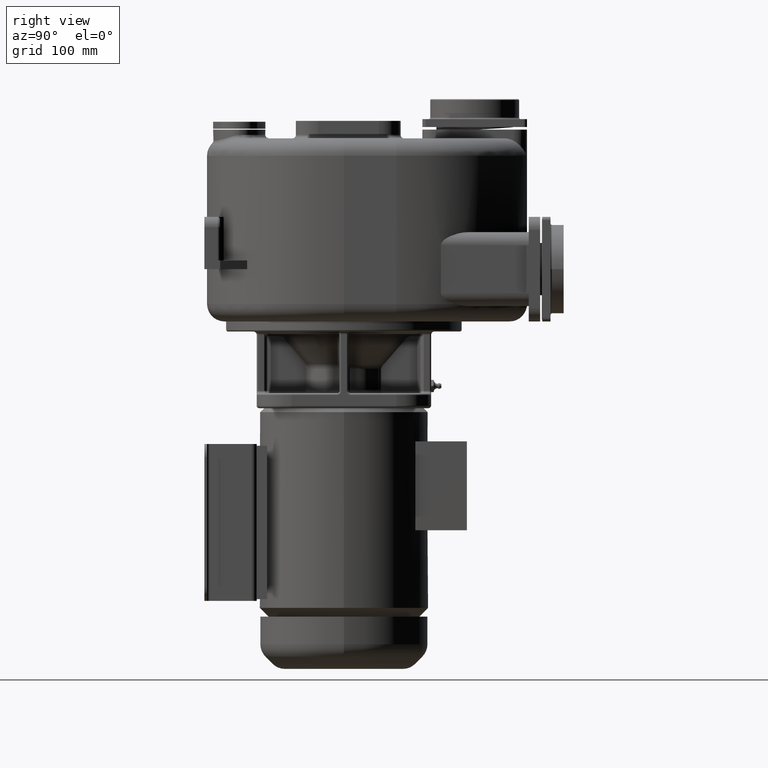
[diagram: clean part render]
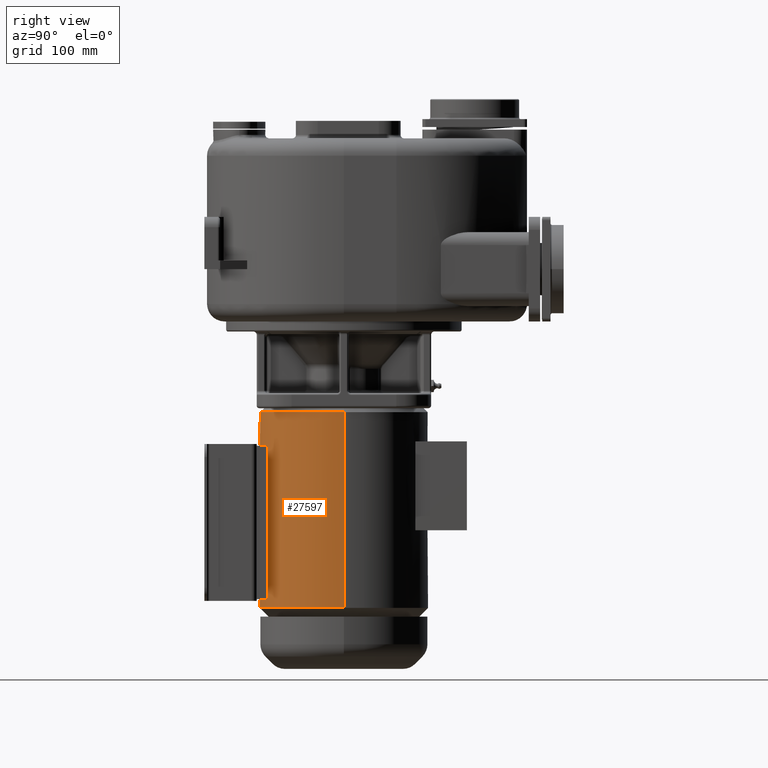
[diagram: same view with one face highlighted and labeled with its STEP entity id]
A machine part, right view. The second image highlights one B-rep face of the part: STEP entity #27597.
In plain terms, the highlighted cylindrical surface (partial cylindrical patch) has radius 96.5 mm, axis along (0, 0, 1).
Its self-contained STEP definition (entity closure, byte-faithful):
#10097=CARTESIAN_POINT('',(-9.65E1,1.181785161177E-14,-6.5E0));
#10098=CARTESIAN_POINT('',(-9.65E1,-7.542789046016E-1,-6.499999997994E0));
#10099=CARTESIAN_POINT('',(-9.648231380590E1,-2.262775134733E0,
-6.499945004398E0));
#10100=CARTESIAN_POINT('',(-9.640273042457E1,-4.524397300796E0,
-6.499967107632E0));
#10101=CARTESIAN_POINT('',(-9.627019019759E1,-6.782734426118E0,
-6.499961185088E0));
#10102=CARTESIAN_POINT('',(-9.608482805175E1,-9.036636923442E0,
-6.499962772029E0));
#10103=CARTESIAN_POINT('',(-9.584665463490E1,-1.128602025169E1,
-6.499962346810E0));
#10104=CARTESIAN_POINT('',(-9.555584662438E1,-1.352904544977E1,
-6.499962460747E0));
#10105=CARTESIAN_POINT('',(-9.521259159055E1,-1.576443529630E1,
-6.499962430218E0));
#10106=CARTESIAN_POINT('',(-9.481699914031E1,-1.799144514926E1,
-6.499962438398E0));
#10107=CARTESIAN_POINT('',(-9.436932148567E1,-2.020856446600E1,
-6.499962436206E0));
#10108=CARTESIAN_POINT('',(-9.386984978222E1,-2.241444047207E1,
-6.499962436793E0));
#10109=CARTESIAN_POINT('',(-9.331851662665E1,-2.460918404866E1,
-6.499962436636E0));
#10110=CARTESIAN_POINT('',(-9.271580901058E1,-2.679057890291E1,
-6.499962436678E0));
#10111=CARTESIAN_POINT('',(-9.206239081371E1,-2.895638479416E1,
-6.499962436667E0));
#10112=CARTESIAN_POINT('',(-9.135819476835E1,-3.110687204861E1,
-6.499962436670E0));
#10113=CARTESIAN_POINT('',(-9.060370534362E1,-3.324040991913E1,
-6.499962436669E0));
#10114=CARTESIAN_POINT('',(-8.979971483969E1,-3.535487239068E1,
-6.499962436669E0));
#10115=CARTESIAN_POINT('',(-8.894620206302E1,-3.745036973854E1,
-6.499962436669E0));
#10116=CARTESIAN_POINT('',(-8.804361125492E1,-3.952567782903E1,
-6.499962436669E0));
#10117=CARTESIAN_POINT('',(-8.709289428518E1,-4.157864334257E1,
-6.499962436669E0));
#10118=CARTESIAN_POINT('',(-8.609431564537E1,-4.360877803673E1,
-6.499962436669E0));
#10119=CARTESIAN_POINT('',(-8.504811291888E1,-4.561551844165E1,
-6.499962436669E0));
#10120=CARTESIAN_POINT('',(-8.395535039813E1,-4.759679572851E1,
-6.499962436669E0));
#10121=CARTESIAN_POINT('',(-8.281667816357E1,-4.955153046132E1,
-6.499962436669E0));
#10122=CARTESIAN_POINT('',(-8.163204803864E1,-5.147976320655E1,
-6.499962436669E0));
#10123=CARTESIAN_POINT('',(-8.040263984244E1,-5.337950379605E1,
-6.499962436669E0));
#10124=CARTESIAN_POINT('',(-7.912946532958E1,-5.524928786036E1,
-6.499962436669E0));
#10125=CARTESIAN_POINT('',(-7.781230016256E1,-5.708943254178E1,
-6.499962436669E0));
#10126=CARTESIAN_POINT('',(-7.645234128356E1,-5.889817997315E1,
-6.499962436669E0));
#10127=CARTESIAN_POINT('',(-7.505090615207E1,-6.067386095791E1,
-6.499962436669E0));
#10128=CARTESIAN_POINT('',(-7.360775990071E1,-6.241678433681E1,
-6.499962436669E0));
#10129=CARTESIAN_POINT('',(-7.212399538340E1,-6.412554592990E1,
-6.499962436669E0));
#10130=CARTESIAN_POINT('',(-7.060115595117E1,-6.579842403629E1,
-6.499962436669E0));
#10131=CARTESIAN_POINT('',(-6.903921495600E1,-6.743547908544E1,
-6.499962436669E0));
#10132=CARTESIAN_POINT('',(-6.743901305213E1,-6.903576038748E1,
-6.499962436669E0));
#10133=CARTESIAN_POINT('',(-6.580221146219E1,-7.059762581553E1,
-6.499962436669E0));
#10134=CARTESIAN_POINT('',(-6.412925741274E1,-7.212069766057E1,
-6.499962436669E0));
#10135=CARTESIAN_POINT('',(-6.242054950144E1,-7.360456539141E1,
-6.499962436669E0));
#10136=CARTESIAN_POINT('',(-6.067784281839E1,-7.504768629882E1,
-6.499962436669E0));
#10137=CARTESIAN_POINT('',(-5.890215245227E1,-7.644928241755E1,
-6.499962436669E0));
#10138=CARTESIAN_POINT('',(-5.709341056022E1,-7.780938088680E1,
-6.499962436669E0));
#10139=CARTESIAN_POINT('',(-5.525344255587E1,-7.912656319859E1,
-6.499962436669E0));
#10140=CARTESIAN_POINT('',(-5.338372671018E1,-8.039983715258E1,
-6.499962436669E0));
#10141=CARTESIAN_POINT('',(-5.148393964396E1,-8.162941455612E1,
-6.499962436669E0));
#10142=CARTESIAN_POINT('',(-4.955583914220E1,-8.281409841626E1,
-6.499962436669E0));
#10143=CARTESIAN_POINT('',(-4.760126105331E1,-8.395281927913E1,
-6.499962436669E0));
#10144=CARTESIAN_POINT('',(-4.561987317744E1,-8.504577859271E1,
-6.499962436669E0));
#10145=CARTESIAN_POINT('',(-4.361321076072E1,-8.609206811320E1,
-6.499962436669E0));
#10146=CARTESIAN_POINT('',(-4.158333969880E1,-8.709065212846E1,
-6.499962436669E0));
#10147=CARTESIAN_POINT('',(-3.953020456526E1,-8.804158094240E1,
-6.499962436669E0));
#10148=CARTESIAN_POINT('',(-3.745494665941E1,-8.894427277161E1,
-6.499962436669E0));
#10149=CARTESIAN_POINT('',(-3.535971350875E1,-8.979780879650E1,
-6.499962436669E0));
#10150=CARTESIAN_POINT('',(-3.324504865244E1,-9.060200567755E1,
-6.499962436669E0));
#10151=CARTESIAN_POINT('',(-3.111148354607E1,-9.135662338055E1,
-6.499962436669E0));
#10152=CARTESIAN_POINT('',(-2.896121515254E1,-9.206087032475E1,
-6.499962436669E0));
#10153=CARTESIAN_POINT('',(-2.679546826192E1,-9.271439601856E1,
-6.499962436669E0));
#10154=CARTESIAN_POINT('',(-2.461417356929E1,-9.331719960779E1,
-6.499962436669E0));
#10155=CARTESIAN_POINT('',(-2.241954982070E1,-9.386863002592E1,
-6.499962436669E0));
#10156=CARTESIAN_POINT('',(-2.021333415601E1,-9.436830619789E1,
-6.499962436669E0));
#10157=CARTESIAN_POINT('',(-1.799514796832E1,-9.481630667945E1,
-6.499962436669E0));
#10158=CARTESIAN_POINT('',(-1.576706648732E1,-9.521216153478E1,
-6.499962436669E0));
#10159=CARTESIAN_POINT('',(-1.353118923517E1,-9.555554843674E1,
-6.499962436669E0));
#10160=CARTESIAN_POINT('',(-1.128713337235E1,-9.584653309043E1,
-6.499962436669E0));
#10161=CARTESIAN_POINT('',(-9.036660531143E0,-9.608483288482E1,
-6.499962436669E0));
#10162=CARTESIAN_POINT('',(-6.782072349492E0,-9.627024110800E1,
-6.499962436669E0));
#10163=CARTESIAN_POINT('',(-4.523297751302E0,-9.640278432583E1,
-6.499962436669E0));
#10164=CARTESIAN_POINT('',(-2.261612921460E0,-9.648233928368E1,
-6.499962436669E0));
#10165=CARTESIAN_POINT('',(6.467984201739E-4,-9.650883795743E1,
-6.499962436669E0));
#10166=CARTESIAN_POINT('',(2.262911593502E0,-9.648230887358E1,
-6.499962436669E0));
#10167=CARTESIAN_POINT('',(4.524595404251E0,-9.640272339709E1,
-6.499962436669E0));
#10168=CARTESIAN_POINT('',(6.783364057282E0,-9.627015009578E1,
-6.499962436669E0));
#10169=CARTESIAN_POINT('',(9.037952975308E0,-9.608471135409E1,
-6.499962436669E0));
#10170=CARTESIAN_POINT('',(1.128842369233E1,-9.584638111376E1,
-6.499962436669E0));
#10171=CARTESIAN_POINT('',(1.353247251060E1,-9.555536669536E1,
-6.499962436669E0));
#10172=CARTESIAN_POINT('',(1.576834622505E1,-9.521194962480E1,
-6.499962436669E0));
#10173=CARTESIAN_POINT('',(1.799642447007E1,-9.481606440377E1,
-6.499962436669E0));
#10174=CARTESIAN_POINT('',(2.021460253806E1,-9.436803448362E1,
-6.499962436669E0));
#10175=CARTESIAN_POINT('',(2.242081044285E1,-9.386832894444E1,
-6.499962436669E0));
#10176=CARTESIAN_POINT('',(2.461542983327E1,-9.331686825223E1,
-6.499962436669E0));
#10177=CARTESIAN_POINT('',(2.679671534048E1,-9.271403555831E1,
-6.499962436669E0));
#10178=CARTESIAN_POINT('',(2.896245037644E1,-9.206048173466E1,
-6.499962436669E0));
#10179=CARTESIAN_POINT('',(3.111271328070E1,-9.135620462022E1,
-6.499962436669E0));
#10180=CARTESIAN_POINT('',(3.324626814607E1,-9.060155815015E1,
-6.499962436669E0));
#10181=CARTESIAN_POINT('',(3.536091712642E1,-8.979733483831E1,
-6.499962436669E0));
#10182=CARTESIAN_POINT('',(3.745614387890E1,-8.894376865008E1,
-6.499962436669E0));
#10183=CARTESIAN_POINT('',(3.953138965635E1,-8.804104879693E1,
-6.499962436669E0));
#10184=CARTESIAN_POINT('',(4.158450822891E1,-8.709009417307E1,
-6.499962436669E0));
#10185=CARTESIAN_POINT('',(4.361436879818E1,-8.609148148998E1,
-6.499962436669E0));
#10186=CARTESIAN_POINT('',(4.562101809272E1,-8.504516441406E1,
-6.499962436669E0));
#10187=CARTESIAN_POINT('',(4.760238851616E1,-8.395217998178E1,
-6.499962436669E0));
#10188=CARTESIAN_POINT('',(4.955695224192E1,-8.281343235454E1,
-6.499962436669E0));
#10189=CARTESIAN_POINT('',(5.148503860562E1,-8.162872142712E1,
-6.499962436669E0));
#10190=CARTESIAN_POINT('',(5.338480734667E1,-8.039911959683E1,
-6.499962436669E0));
#10191=CARTESIAN_POINT('',(5.525450523408E1,-7.912582114500E1,
-6.499962436669E0));
#10192=CARTESIAN_POINT('',(5.709445808006E1,-7.780861226783E1,
-6.499962436669E0));
#10193=CARTESIAN_POINT('',(5.890318076673E1,-7.644849007906E1,
-6.499962436669E0));
#10194=CARTESIAN_POINT('',(6.067884982006E1,-7.504687210910E1,
-6.499962436669E0));
#10195=CARTESIAN_POINT('',(6.242154029721E1,-7.360372517558E1,
-6.499962436669E0));
#10196=CARTESIAN_POINT('',(6.413022813180E1,-7.211983443799E1,
-6.499962436669E0));
#10197=CARTESIAN_POINT('',(6.580315776075E1,-7.059674378346E1,
-6.499962436669E0));
#10198=CARTESIAN_POINT('',(6.743994231027E1,-6.903485266649E1,
-6.499962436669E0));
#10199=CARTESIAN_POINT('',(6.904012265408E1,-6.743454974043E1,
-6.499962436669E0));
#10200=CARTESIAN_POINT('',(7.060203875061E1,-6.579747677999E1,
-6.499962436669E0));
#10201=CARTESIAN_POINT('',(7.212485795671E1,-6.412457580056E1,
-6.499962436669E0));
#10202=CARTESIAN_POINT('',(7.360860015071E1,-6.241579339504E1,
-6.499962436669E0));
#10203=CARTESIAN_POINT('',(7.505172090616E1,-6.067285310682E1,
-6.499962436669E0));
#10204=CARTESIAN_POINT('',(7.645313288092E1,-5.889715246811E1,
-6.499962436669E0));
#10205=CARTESIAN_POINT('',(7.781306865241E1,-5.708838508184E1,
-6.499962436669E0));
#10206=CARTESIAN_POINT('',(7.913020776185E1,-5.524822447569E1,
-6.499962436669E0));
#10207=CARTESIAN_POINT('',(8.040335667088E1,-5.337842408947E1,
-6.499962436669E0));
#10208=CARTESIAN_POINT('',(8.163274121038E1,-5.147866405415E1,
-6.499962436669E0));
#10209=CARTESIAN_POINT('',(8.281734479482E1,-4.955041622460E1,
-6.499962436669E0));
#10210=CARTESIAN_POINT('',(8.395598894415E1,-4.759566938775E1,
-6.499962436669E0));
#10211=CARTESIAN_POINT('',(8.504872655469E1,-4.561437438634E1,
-6.499962436669E0));
#10212=CARTESIAN_POINT('',(8.609490206604E1,-4.360762019246E1,
-6.499962436669E0));
#10213=CARTESIAN_POINT('',(8.709345149841E1,-4.157747619123E1,
-6.499962436669E0));
#10214=CARTESIAN_POINT('',(8.804414439379E1,-3.952449039079E1,
-6.499962436669E0));
#10215=CARTESIAN_POINT('',(8.894670793858E1,-3.744916818149E1,
-6.499962436669E0));
#10216=CARTESIAN_POINT('',(8.980019031314E1,-3.535366453689E1,
-6.499962436669E0));
#10217=CARTESIAN_POINT('',(9.060414990669E1,-3.323919797628E1,
-6.499962436669E0));
#10218=CARTESIAN_POINT('',(9.135860838119E1,-3.110565709966E1,
-6.499962436669E0));
#10219=CARTESIAN_POINT('',(9.206277622025E1,-2.895515985082E1,
-6.499962436666E0));
#10220=CARTESIAN_POINT('',(9.271617502581E1,-2.678931340847E1,
-6.499962436678E0));
#10221=CARTESIAN_POINT('',(9.331886273386E1,-2.460787237027E1,
-6.499962436636E0));
#10222=CARTESIAN_POINT('',(9.387016355648E1,-2.241312491168E1,
-6.499962436793E0));
#10223=CARTESIAN_POINT('',(9.436958410806E1,-2.020733266494E1,
-6.499962436206E0));
#10224=CARTESIAN_POINT('',(9.481719728523E1,-1.799039158772E1,
-6.499962438397E0));
#10225=CARTESIAN_POINT('',(9.521272536832E1,-1.576361509328E1,
-6.499962430217E0));
#10226=CARTESIAN_POINT('',(9.555592513035E1,-1.352847690212E1,
-6.499962460746E0));
#10227=CARTESIAN_POINT('',(9.584669202958E1,-1.128568761383E1,
-6.499962346810E0));
#10228=CARTESIAN_POINT('',(9.608483853458E1,-9.036509949932E0,
-6.499962772025E0));
#10229=CARTESIAN_POINT('',(9.627018712687E1,-6.782764151262E0,
-6.499961185104E0));
#10230=CARTESIAN_POINT('',(9.640272453917E1,-4.524514458801E0,
-6.499967107570E0));
#10231=CARTESIAN_POINT('',(9.648231134232E1,-2.262896317865E0,
-6.499945004627E0));
#10232=CARTESIAN_POINT('',(9.65E1,-7.543304264046E-1,-6.499999997498E0));
#10233=CARTESIAN_POINT('',(9.65E1,-2.363567322354E-14,-6.5E0));
#10235=CARTESIAN_POINT('',(0.E0,0.E0,-2.31E2));
#10236=DIRECTION('',(0.E0,0.E0,1.E0));
#10237=DIRECTION('',(0.E0,-1.E0,0.E0));
#10238=AXIS2_PLACEMENT_3D('',#10235,#10236,#10237);
#10240=CARTESIAN_POINT('',(0.E0,0.E0,-2.31E2));
#10241=DIRECTION('',(0.E0,0.E0,1.E0));
#10242=DIRECTION('',(-1.E0,0.E0,0.E0));
#10243=AXIS2_PLACEMENT_3D('',#10240,#10241,#10242);
#10245=DIRECTION('',(-4.182703791528E-8,-7.068476287150E-11,1.E0));
#10246=VECTOR('',#10245,2.245000093915E2);
#10247=CARTESIAN_POINT('',(-9.65E1,1.502100586627E-14,-2.31E2));
#10248=LINE('',#10247,#10246);
#10249=CARTESIAN_POINT('',(0.E0,0.E0,-2.21E2));
#10250=DIRECTION('',(0.E0,0.E0,1.E0));
#10251=DIRECTION('',(2.261466615834E-1,-9.740932642487E-1,0.E0));
#10252=AXIS2_PLACEMENT_3D('',#10249,#10250,#10251);
#10254=DIRECTION('',(0.E0,0.E0,1.E0));
#10255=VECTOR('',#10254,1.76E2);
#10256=CARTESIAN_POINT('',(3.960113634733E1,-8.8E1,-2.21E2));
#10257=LINE('',#10256,#10255);
#10258=CARTESIAN_POINT('',(0.E0,0.E0,-4.5E1));
#10259=DIRECTION('',(0.E0,0.E0,1.E0));
#10260=DIRECTION('',(2.261466615834E-1,-9.740932642487E-1,0.E0));
#10261=AXIS2_PLACEMENT_3D('',#10258,#10259,#10260);
#10263=CARTESIAN_POINT('',(0.E0,0.E0,-4.5E1));
#10264=DIRECTION('',(0.E0,0.E0,1.E0));
#10265=DIRECTION('',(-2.261466615834E-1,-9.740932642487E-1,0.E0));
#10266=AXIS2_PLACEMENT_3D('',#10263,#10264,#10265);
#10268=CARTESIAN_POINT('',(0.E0,0.E0,-4.5E1));
#10269=DIRECTION('',(0.E0,0.E0,1.E0));
#10270=DIRECTION('',(-4.103744699205E-1,-9.119170984456E-1,0.E0));
#10271=AXIS2_PLACEMENT_3D('',#10268,#10269,#10270);
#10273=DIRECTION('',(0.E0,0.E0,1.E0));
#10274=VECTOR('',#10273,1.76E2);
#10275=CARTESIAN_POINT('',(-3.960113634733E1,-8.8E1,-2.21E2));
#10276=LINE('',#10275,#10274);
#10277=CARTESIAN_POINT('',(0.E0,0.E0,-2.21E2));
#10278=DIRECTION('',(0.E0,0.E0,1.E0));
#10279=DIRECTION('',(-4.103744699205E-1,-9.119170984456E-1,0.E0));
#10280=AXIS2_PLACEMENT_3D('',#10277,#10278,#10279);
#10282=CARTESIAN_POINT('',(0.E0,0.E0,-2.21E2));
#10283=DIRECTION('',(0.E0,0.E0,1.E0));
#10284=DIRECTION('',(-2.261466615834E-1,-9.740932642487E-1,0.E0));
#10285=AXIS2_PLACEMENT_3D('',#10282,#10283,#10284);
#10435=DIRECTION('',(4.182703810518E-8,7.068459921480E-11,1.E0));
#10436=VECTOR('',#10435,2.245000093915E2);
#10437=CARTESIAN_POINT('',(9.65E1,0.E0,-2.31E2));
#10438=LINE('',#10437,#10436);
#12632=CARTESIAN_POINT('',(-9.65E1,1.181785161177E-14,-2.31E2));
#12634=VERTEX_POINT('',#12632);
#12635=CARTESIAN_POINT('',(9.65E1,-1.181783161177E-14,-2.31E2));
#12636=VERTEX_POINT('',#12635);
#12637=CARTESIAN_POINT('',(-1.772675241766E-14,-9.65E1,-2.31E2));
#12638=VERTEX_POINT('',#12637);
#12687=CARTESIAN_POINT('',(-3.960113634733E1,-8.8E1,-4.5E1));
#12688=VERTEX_POINT('',#12687);
#12689=CARTESIAN_POINT('',(3.960113634733E1,-8.8E1,-4.5E1));
#12690=VERTEX_POINT('',#12689);
#12691=CARTESIAN_POINT('',(-3.960113634733E1,-8.8E1,-2.21E2));
#12692=VERTEX_POINT('',#12691);
#12693=CARTESIAN_POINT('',(3.960113634733E1,-8.8E1,-2.21E2));
#12694=VERTEX_POINT('',#12693);
#12695=VERTEX_POINT('',#10097);
#12696=VERTEX_POINT('',#10233);
#12729=CARTESIAN_POINT('',(-2.182315284280E1,-9.4E1,-2.21E2));
#12730=CARTESIAN_POINT('',(2.182315284280E1,-9.4E1,-2.21E2));
#12731=VERTEX_POINT('',#12729);
#12732=VERTEX_POINT('',#12730);
#12733=CARTESIAN_POINT('',(-2.182315284280E1,-9.4E1,-4.5E1));
#12734=CARTESIAN_POINT('',(2.182315284280E1,-9.4E1,-4.5E1));
#12735=VERTEX_POINT('',#12733);
#12736=VERTEX_POINT('',#12734);
#27563=CARTESIAN_POINT('',(0.E0,0.E0,-3.01E2));
#27564=DIRECTION('',(0.E0,0.E0,1.E0));
#27565=DIRECTION('',(1.E0,0.E0,0.E0));
#27566=AXIS2_PLACEMENT_3D('',#27563,#27564,#27565);
#27567=CYLINDRICAL_SURFACE('',#27566,9.65E1);
#27568=ORIENTED_EDGE('',*,*,#27557,.T.);
#27570=ORIENTED_EDGE('',*,*,#27569,.F.);
#27572=ORIENTED_EDGE('',*,*,#27571,.F.);
#27574=ORIENTED_EDGE('',*,*,#27573,.F.);
#27576=ORIENTED_EDGE('',*,*,#27575,.T.);
#27577=EDGE_LOOP('',(#27568,#27570,#27572,#27574,#27576));
#27578=FACE_OUTER_BOUND('',#27577,.F.);
#27580=ORIENTED_EDGE('',*,*,#27579,.T.);
#27582=ORIENTED_EDGE('',*,*,#27581,.T.);
#27584=ORIENTED_EDGE('',*,*,#27583,.F.);
#27586=ORIENTED_EDGE('',*,*,#27585,.F.);
#27588=ORIENTED_EDGE('',*,*,#27587,.F.);
#27590=ORIENTED_EDGE('',*,*,#27589,.F.);
#27592=ORIENTED_EDGE('',*,*,#27591,.T.);
#27594=ORIENTED_EDGE('',*,*,#27593,.T.);
#27595=EDGE_LOOP('',(#27580,#27582,#27584,#27586,#27588,#27590,#27592,#27594));
#27596=FACE_BOUND('',#27595,.F.);
#27597=ADVANCED_FACE('',(#27578,#27596),#27567,.T.);
#10234=B_SPLINE_CURVE_WITH_KNOTS('',3,(#10097,#10098,#10099,#10100,#10101,
#10102,#10103,#10104,#10105,#10106,#10107,#10108,#10109,#10110,#10111,#10112,
#10113,#10114,#10115,#10116,#10117,#10118,#10119,#10120,#10121,#10122,#10123,
#10124,#10125,#10126,#10127,#10128,#10129,#10130,#10131,#10132,#10133,#10134,
#10135,#10136,#10137,#10138,#10139,#10140,#10141,#10142,#10143,#10144,#10145,
#10146,#10147,#10148,#10149,#10150,#10151,#10152,#10153,#10154,#10155,#10156,
#10157,#10158,#10159,#10160,#10161,#10162,#10163,#10164,#10165,#10166,#10167,
#10168,#10169,#10170,#10171,#10172,#10173,#10174,#10175,#10176,#10177,#10178,
#10179,#10180,#10181,#10182,#10183,#10184,#10185,#10186,#10187,#10188,#10189,
#10190,#10191,#10192,#10193,#10194,#10195,#10196,#10197,#10198,#10199,#10200,
#10201,#10202,#10203,#10204,#10205,#10206,#10207,#10208,#10209,#10210,#10211,
#10212,#10213,#10214,#10215,#10216,#10217,#10218,#10219,#10220,#10221,#10222,
#10223,#10224,#10225,#10226,#10227,#10228,#10229,#10230,#10231,#10232,#10233),
.UNSPECIFIED.,.F.,.F.,(4,1,1,1,1,1,1,1,1,1,1,1,1,1,1,1,1,1,1,1,1,1,1,1,1,1,1,1,
1,1,1,1,1,1,1,1,1,1,1,1,1,1,1,1,1,1,1,1,1,1,1,1,1,1,1,1,1,1,1,1,1,1,1,1,1,1,1,1,
1,1,1,1,1,1,1,1,1,1,1,1,1,1,1,1,1,1,1,1,1,1,1,1,1,1,1,1,1,1,1,1,1,1,1,1,1,1,1,1,
1,1,1,1,1,1,1,1,1,1,1,1,1,1,1,1,1,1,1,1,1,1,1,1,1,1,4),(0.E0,7.462686567164E-3,
1.492537313433E-2,2.238805970149E-2,2.985074626866E-2,3.731343283582E-2,
4.477611940299E-2,5.223880597015E-2,5.970149253731E-2,6.716417910448E-2,
7.462686567164E-2,8.208955223881E-2,8.955223880597E-2,9.701492537313E-2,
1.044776119403E-1,1.119402985075E-1,1.194029850746E-1,1.268656716418E-1,
1.343283582090E-1,1.417910447761E-1,1.492537313433E-1,1.567164179104E-1,
1.641791044776E-1,1.716417910448E-1,1.791044776119E-1,1.865671641791E-1,
1.940298507463E-1,2.014925373134E-1,2.089552238806E-1,2.164179104478E-1,
2.238805970149E-1,2.313432835821E-1,2.388059701493E-1,2.462686567164E-1,
2.537313432836E-1,2.611940298507E-1,2.686567164179E-1,2.761194029851E-1,
2.835820895522E-1,2.910447761194E-1,2.985074626866E-1,3.059701492537E-1,
3.134328358209E-1,3.208955223881E-1,3.283582089552E-1,3.358208955224E-1,
3.432835820896E-1,3.507462686567E-1,3.582089552239E-1,3.656716417910E-1,
3.731343283582E-1,3.805970149254E-1,3.880597014925E-1,3.955223880597E-1,
4.029850746269E-1,4.104477611940E-1,4.179104477612E-1,4.253731343284E-1,
4.328358208955E-1,4.402985074627E-1,4.477611940299E-1,4.552238805970E-1,
4.626865671642E-1,4.701492537313E-1,4.776119402985E-1,4.850746268657E-1,
4.925373134328E-1,5.E-1,5.074626865672E-1,5.149253731343E-1,5.223880597015E-1,
5.298507462687E-1,5.373134328358E-1,5.447761194030E-1,5.522388059701E-1,
5.597014925373E-1,5.671641791045E-1,5.746268656716E-1,5.820895522388E-1,
5.895522388060E-1,5.970149253731E-1,6.044776119403E-1,6.119402985075E-1,
6.194029850746E-1,6.268656716418E-1,6.343283582090E-1,6.417910447761E-1,
6.492537313433E-1,6.567164179104E-1,6.641791044776E-1,6.716417910448E-1,
6.791044776119E-1,6.865671641791E-1,6.940298507463E-1,7.014925373134E-1,
7.089552238806E-1,7.164179104478E-1,7.238805970149E-1,7.313432835821E-1,
7.388059701493E-1,7.462686567164E-1,7.537313432836E-1,7.611940298507E-1,
7.686567164179E-1,7.761194029851E-1,7.835820895522E-1,7.910447761194E-1,
7.985074626866E-1,8.059701492537E-1,8.134328358209E-1,8.208955223881E-1,
8.283582089552E-1,8.358208955224E-1,8.432835820896E-1,8.507462686567E-1,
8.582089552239E-1,8.656716417910E-1,8.731343283582E-1,8.805970149254E-1,
8.880597014925E-1,8.955223880597E-1,9.029850746269E-1,9.104477611940E-1,
9.179104477612E-1,9.253731343284E-1,9.328358208955E-1,9.402985074627E-1,
9.477611940299E-1,9.552238805970E-1,9.626865671642E-1,9.701492537313E-1,
9.776119402985E-1,9.850746268657E-1,9.925373134328E-1,1.E0),.UNSPECIFIED.);
#10239=CIRCLE('',#10238,9.65E1);
#10244=CIRCLE('',#10243,9.65E1);
#10253=CIRCLE('',#10252,9.65E1);
#10262=CIRCLE('',#10261,9.65E1);
#10267=CIRCLE('',#10266,9.65E1);
#10272=CIRCLE('',#10271,9.65E1);
#10281=CIRCLE('',#10280,9.65E1);
#10286=CIRCLE('',#10285,9.65E1);
#27557=EDGE_CURVE('',#12695,#12696,#10234,.T.);
#27569=EDGE_CURVE('',#12636,#12696,#10438,.T.);
#27571=EDGE_CURVE('',#12638,#12636,#10239,.T.);
#27573=EDGE_CURVE('',#12634,#12638,#10244,.T.);
#27575=EDGE_CURVE('',#12634,#12695,#10248,.T.);
#27579=EDGE_CURVE('',#12732,#12694,#10253,.T.);
#27581=EDGE_CURVE('',#12694,#12690,#10257,.T.);
#27583=EDGE_CURVE('',#12736,#12690,#10262,.T.);
#27585=EDGE_CURVE('',#12735,#12736,#10267,.T.);
#27587=EDGE_CURVE('',#12688,#12735,#10272,.T.);
#27589=EDGE_CURVE('',#12692,#12688,#10276,.T.);
#27591=EDGE_CURVE('',#12692,#12731,#10281,.T.);
#27593=EDGE_CURVE('',#12731,#12732,#10286,.T.);